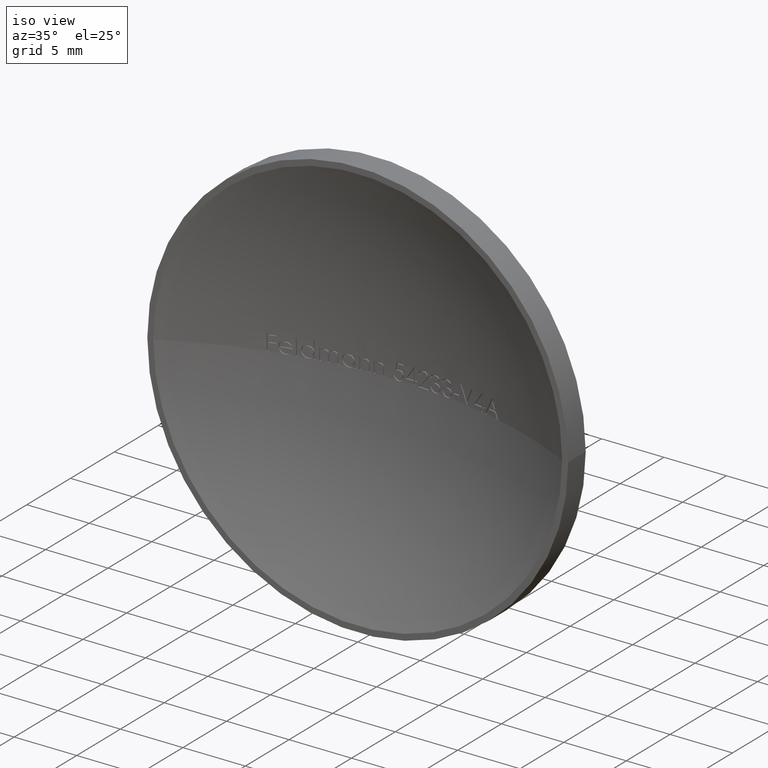
[diagram: clean part render]
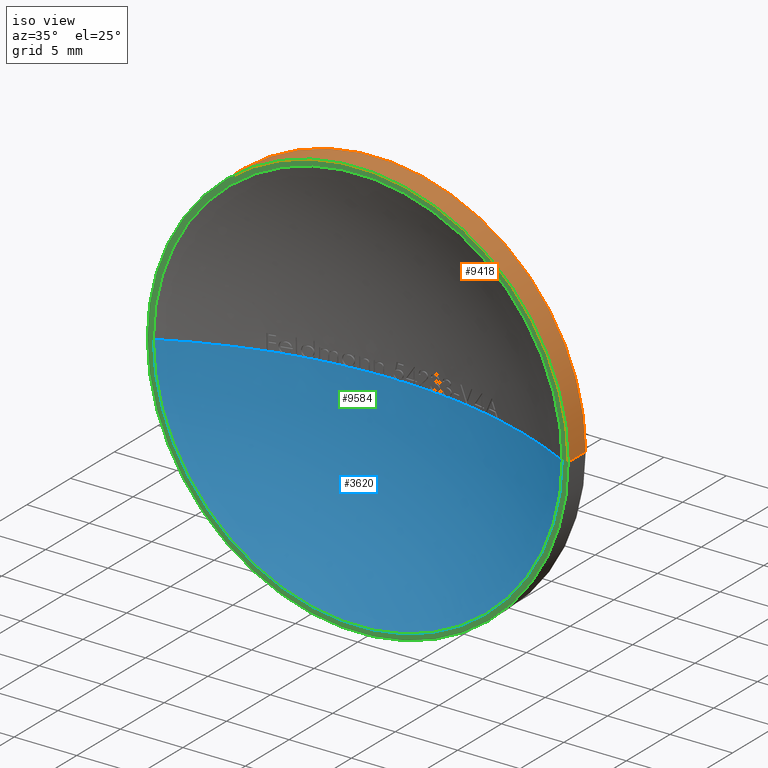
[diagram: same view with three faces highlighted in distinct colors, each labeled with its STEP entity id]
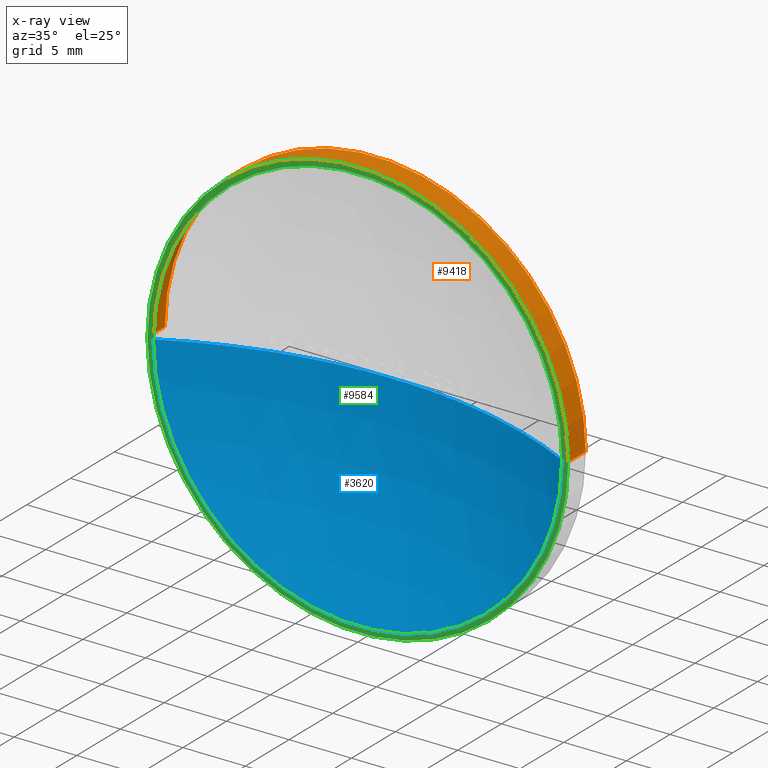
[diagram: x-ray of the same camera — body ghosted, the three highlighted faces saturated]
A machine part, iso view with three faces highlighted in distinct colors.
The next image is the same camera in x-ray (body ghosted, the three faces saturated) — at least one of them is partly hidden behind the body in this view.
Their STEP definitions:

[orange] entity #9418 — the highlighted cylindrical surface (partial cylindrical patch) has radius 16.85 mm, axis along (-0, -1, -0).
#361 = CARTESIAN_POINT ( 'NONE',  ( 16.84999999999999800, -4.663282616847321200E-015, 0.0000000000000000000 ) ) ;
#1017 = CARTESIAN_POINT ( 'NONE',  ( -16.85000000000001200, 2.000000000000191800, 2.063529856563290600E-015 ) ) ;
#1102 = AXIS2_PLACEMENT_3D ( 'NONE', #7205, #8208, #3215 ) ;
#1202 = CIRCLE ( 'NONE', #9539, 16.85000000000000100 ) ;
#1521 = DIRECTION ( 'NONE',  ( -5.836103876533815000E-015, -1.000000000000000000, -0.0000000000000000000 ) ) ;
#1818 = CARTESIAN_POINT ( 'NONE',  ( 16.84999999999999100, 1.999999999999994900, 0.0000000000000000000 ) ) ;
#2272 = CYLINDRICAL_SURFACE ( 'NONE', #8774, 16.85000000000001200 ) ;
#2517 = EDGE_CURVE ( 'NONE', #12225, #3539, #3231, .T. ) ;
#2733 = VERTEX_POINT ( 'NONE', #1017 ) ;
#3215 = DIRECTION ( 'NONE',  ( 1.000000000000000000, -5.836103876533814200E-015, 0.0000000000000000000 ) ) ;
#3231 = CIRCLE ( 'NONE', #1102, 16.85000000000002300 ) ;
#3398 = ORIENTED_EDGE ( 'NONE', *, *, #11072, .T. ) ;
#3408 = DIRECTION ( 'NONE',  ( 1.000000000000000000, -5.842466306331382200E-015, 0.0000000000000000000 ) ) ;
#3539 = VERTEX_POINT ( 'NONE', #5109 ) ;
#3594 = DIRECTION ( 'NONE',  ( 1.000000000000000000, -5.816728569299081700E-015, 0.0000000000000000000 ) ) ;
#3744 = EDGE_CURVE ( 'NONE', #5668, #12225, #10118, .T. ) ;
#4392 = LINE ( 'NONE', #11238, #8650 ) ;
#4409 = DIRECTION ( 'NONE',  ( -5.836103876533815000E-015, -1.000000000000000000, -0.0000000000000000000 ) ) ;
#5109 = CARTESIAN_POINT ( 'NONE',  ( -16.85000000000004400, 1.920134180223424900E-013, 2.063529856563293800E-015 ) ) ;
#5265 = CARTESIAN_POINT ( 'NONE',  ( -1.167220775306714700E-014, 2.000000000000093300, 0.0000000000000000000 ) ) ;
#5378 = ORIENTED_EDGE ( 'NONE', *, *, #2517, .F. ) ;
#5668 = VERTEX_POINT ( 'NONE', #1818 ) ;
#6999 = FACE_OUTER_BOUND ( 'NONE', #9742, .T. ) ;
#7205 = CARTESIAN_POINT ( 'NONE',  ( -2.334441550613477400E-014, 9.367506770274758300E-014, 0.0000000000000000000 ) ) ;
#7536 = VECTOR ( 'NONE', #9918, 1000.000000000000000 ) ;
#7914 = CARTESIAN_POINT ( 'NONE',  ( 16.85000000000001200, 3.999999999999912500, 0.0000000000000000000 ) ) ;
#8208 = DIRECTION ( 'NONE',  ( -5.836103876533815000E-015, -1.000000000000000000, -0.0000000000000000000 ) ) ;
#8385 = DIRECTION ( 'NONE',  ( -5.836103876533815000E-015, -1.000000000000000000, -0.0000000000000000000 ) ) ;
#8650 = VECTOR ( 'NONE', #1521, 1000.000000000000000 ) ;
#8774 = AXIS2_PLACEMENT_3D ( 'NONE', #9327, #8385, #3594 ) ;
#9327 = CARTESIAN_POINT ( 'NONE',  ( 0.0000000000000000000, 4.000000000000010700, 0.0000000000000000000 ) ) ;
#9418 = ADVANCED_FACE ( 'NONE', ( #6999 ), #2272, .T. ) ;
#9463 = EDGE_CURVE ( 'NONE', #2733, #3539, #4392, .T. ) ;
#9539 = AXIS2_PLACEMENT_3D ( 'NONE', #5265, #4409, #3408 ) ;
#9742 = EDGE_LOOP ( 'NONE', ( #3398, #11066, #5378, #12200 ) ) ;
#9918 = DIRECTION ( 'NONE',  ( -5.836103876533815000E-015, -1.000000000000000000, -0.0000000000000000000 ) ) ;
#10118 = LINE ( 'NONE', #7914, #7536 ) ;
#11066 = ORIENTED_EDGE ( 'NONE', *, *, #9463, .T. ) ;
#11072 = EDGE_CURVE ( 'NONE', #5668, #2733, #1202, .T. ) ;
#11238 = CARTESIAN_POINT ( 'NONE',  ( -16.85000000000001200, 4.000000000000108400, 2.063529856563291400E-015 ) ) ;
#12200 = ORIENTED_EDGE ( 'NONE', *, *, #3744, .F. ) ;
#12225 = VERTEX_POINT ( 'NONE', #361 ) ;

[blue] entity #3620 — the highlighted spherical surface has radius 35.4903 mm.
#28 = DIRECTION ( 'NONE',  ( 1.000000000000000000, 0.0000000000000000000, 0.0000000000000000000 ) ) ;
#30 = ORIENTED_EDGE ( 'NONE', *, *, #2640, .T. ) ;
#32 = CARTESIAN_POINT ( 'NONE',  ( 1.167220775306751800E-014, -31.49031249999995200, 0.0000000000000000000 ) ) ;
#109 = ORIENTED_EDGE ( 'NONE', *, *, #9183, .T. ) ;
#116 = DIRECTION ( 'NONE',  ( -1.224646799147353200E-016, 7.147165931888596700E-031, -1.000000000000000000 ) ) ;
#134 = DIRECTION ( 'NONE',  ( 0.0000000000000000000, 0.0000000000000000000, 1.000000000000000000 ) ) ;
#139 = CIRCLE ( 'NONE', #9360, 35.49031249999995900 ) ;
#149 = CARTESIAN_POINT ( 'NONE',  ( 4.379146726176777800, 3.728792456197310500, -1.096664712619620100E-005 ) ) ;
#272 = AXIS2_PLACEMENT_3D ( 'NONE', #5715, #12260, #625 ) ;
#275 = CARTESIAN_POINT ( 'NONE',  ( 1.167220775306751800E-014, -31.49031249999995200, 0.0000000000000000000 ) ) ;
#348 = CIRCLE ( 'NONE', #2376, 35.49031249999995900 ) ;
#372 = DIRECTION ( 'NONE',  ( 1.000000000000000000, 0.0000000000000000000, 0.0000000000000000000 ) ) ;
#376 = DIRECTION ( 'NONE',  ( 1.000000000000000000, 0.0000000000000000000, 0.0000000000000000000 ) ) ;
#395 = ORIENTED_EDGE ( 'NONE', *, *, #7168, .T. ) ;
#398 = DIRECTION ( 'NONE',  ( -1.224646799147353200E-016, 7.147165931888596700E-031, -1.000000000000000000 ) ) ;
#407 = VERTEX_POINT ( 'NONE', #8241 ) ;
#411 = DIRECTION ( 'NONE',  ( 1.000000000000000000, 0.0000000000000000000, 0.0000000000000000000 ) ) ;
#424 = AXIS2_PLACEMENT_3D ( 'NONE', #11244, #10263, #4433 ) ;
#437 = VERTEX_POINT ( 'NONE', #3490 ) ;
#484 = DIRECTION ( 'NONE',  ( -1.000000000000000000, 0.0000000000000000000, 1.224646799147353500E-016 ) ) ;
#498 = VERTEX_POINT ( 'NONE', #6464 ) ;
#513 = AXIS2_PLACEMENT_3D ( 'NONE', #5500, #12339, #7489 ) ;
#517 = EDGE_CURVE ( 'NONE', #12592, #9521, #11001, .T. ) ;
#536 = EDGE_CURVE ( 'NONE', #3498, #2826, #2778, .T. ) ;
#545 = VERTEX_POINT ( 'NONE', #11680 ) ;
#548 = VERTEX_POINT ( 'NONE', #6716 ) ;
#560 = CARTESIAN_POINT ( 'NONE',  ( 4.748798501803322300, 3.680857240312560600, 8.449894842128888500E-007 ) ) ;
#567 = VERTEX_POINT ( 'NONE', #5833 ) ;
#568 = ORIENTED_EDGE ( 'NONE', *, *, #10122, .T. ) ;
#625 = DIRECTION ( 'NONE',  ( 1.000000000000000000, 0.0000000000000000000, 0.0000000000000000000 ) ) ;
#645 = DIRECTION ( 'NONE',  ( 0.0000000000000000000, 0.0000000000000000000, 1.000000000000000000 ) ) ;
#654 = ORIENTED_EDGE ( 'NONE', *, *, #7585, .T. ) ;
#672 = CARTESIAN_POINT ( 'NONE',  ( -7.935163971582754000, 3.101525232382718500, -0.01679690385813359400 ) ) ;
#737 = DIRECTION ( 'NONE',  ( 1.000000000000000000, 0.0000000000000000000, 0.0000000000000000000 ) ) ;
#758 = DIRECTION ( 'NONE',  ( 0.0000000000000000000, -0.0000000000000000000, 1.000000000000000000 ) ) ;
#768 = AXIS2_PLACEMENT_3D ( 'NONE', #5437, #8235, #5393 ) ;
#831 = CARTESIAN_POINT ( 'NONE',  ( 4.379146726176777800, 3.728792456197310500, -1.096664712619620100E-005 ) ) ;
#863 = CIRCLE ( 'NONE', #513, 35.49031249999995900 ) ;
#876 = CARTESIAN_POINT ( 'NONE',  ( 1.696047008547017800, 3.959450628862451400, -1.038529270110141400E-016 ) ) ;
#877 = CARTESIAN_POINT ( 'NONE',  ( -7.800518742710129200, 3.132139341137374400, 1.509771737526409400E-006 ) ) ;
#893 = AXIS2_PLACEMENT_3D ( 'NONE', #12557, #7665, #28 ) ;
#918 = VERTEX_POINT ( 'NONE', #5814 ) ;
#921 = EDGE_CURVE ( 'NONE', #407, #7222, #3696, .T. ) ;
#928 = CARTESIAN_POINT ( 'NONE',  ( 3.476263925993172700, 3.829340944011420300, -0.02983400976588823600 ) ) ;
#929 = DIRECTION ( 'NONE',  ( 1.000000000000000000, 0.0000000000000000000, 0.0000000000000000000 ) ) ;
#985 = ORIENTED_EDGE ( 'NONE', *, *, #10783, .T. ) ;
#1014 = ORIENTED_EDGE ( 'NONE', *, *, #4715, .T. ) ;
#1040 = CARTESIAN_POINT ( 'NONE',  ( -3.258534177724148300, 3.850092499265832700, -2.069073908493412000E-006 ) ) ;
#1044 = CARTESIAN_POINT ( 'NONE',  ( 4.562631460336546300, 3.705475953657665600, -0.03392094017094052200 ) ) ;
#1060 = EDGE_CURVE ( 'NONE', #9867, #8494, #7938, .T. ) ;
#1062 = DIRECTION ( 'NONE',  ( 0.0000000000000000000, -0.0000000000000000000, 1.000000000000000000 ) ) ;
#1121 = ORIENTED_EDGE ( 'NONE', *, *, #9878, .T. ) ;
#1124 = CARTESIAN_POINT ( 'NONE',  ( 1.167220775306751800E-014, -31.49031249999995200, 0.0000000000000000000 ) ) ;
#1157 = ORIENTED_EDGE ( 'NONE', *, *, #3932, .F. ) ;
#1199 = VERTEX_POINT ( 'NONE', #3730 ) ;
#1341 = CIRCLE ( 'NONE', #10225, 35.49031249999995900 ) ;
#1348 = AXIS2_PLACEMENT_3D ( 'NONE', #32, #116, #6785 ) ;
#1349 = CARTESIAN_POINT ( 'NONE',  ( 1.167220775306751800E-014, -31.49031249999995200, 0.0000000000000000000 ) ) ;
#1357 = DIRECTION ( 'NONE',  ( 0.0000000000000000000, 0.0000000000000000000, 1.000000000000000000 ) ) ;
#1359 = CIRCLE ( 'NONE', #5794, 35.49031249999995900 ) ;
#1364 = EDGE_CURVE ( 'NONE', #6060, #567, #4856, .T. ) ;
#1371 = CARTESIAN_POINT ( 'NONE',  ( -6.272029140189477700, 3.441397908695965400, -0.01010645979320831500 ) ) ;
#1392 = B_SPLINE_CURVE_WITH_KNOTS ( 'NONE', 3,
 ( #2160, #9975, #1371, #1449, #1407, #5153, #7214, #3221 ),
 .UNSPECIFIED., .F., .F.,
 ( 4, 2, 2, 4 ),
 ( 0.6904297825672659500, 0.8452148912836327000, 0.9226074456418162900, 1.000000000000000000 ),
 .UNSPECIFIED. ) ;
#1407 = CARTESIAN_POINT ( 'NONE',  ( -6.315183296127559100, 3.433613941332580600, -0.01493816883930907700 ) ) ;
#1446 = ORIENTED_EDGE ( 'NONE', *, *, #3033, .F. ) ;
#1449 = CARTESIAN_POINT ( 'NONE',  ( -6.306798829191019500, 3.435129620968715400, -0.01425243663212617300 ) ) ;
#1459 = VERTEX_POINT ( 'NONE', #12318 ) ;
#1473 = EDGE_CURVE ( 'NONE', #10479, #918, #10840, .T. ) ;
#1490 = CARTESIAN_POINT ( 'NONE',  ( 0.6300673311899101000, 3.994418515346501100, -0.01163513066297225000 ) ) ;
#1559 = CARTESIAN_POINT ( 'NONE',  ( -3.303865669304365300, 3.845889935487476900, -0.01010025188981365100 ) ) ;
#1600 = CARTESIAN_POINT ( 'NONE',  ( -3.347045541091298900, 3.841818228172117600, -0.01493644281810028700 ) ) ;
#1621 = SPHERICAL_SURFACE ( 'NONE', #11726, 35.49031249999995900 ) ;
#1648 = CIRCLE ( 'NONE', #12238, 35.49031249999995900 ) ;
#1724 = AXIS2_PLACEMENT_3D ( 'NONE', #10879, #8014, #9930 ) ;
#1728 = CARTESIAN_POINT ( 'NONE',  ( -7.943065154246786700, 3.099710767490028400, -0.01696047008547008800 ) ) ;
#1770 = VERTEX_POINT ( 'NONE', #5263 ) ;
#1781 = ORIENTED_EDGE ( 'NONE', *, *, #6211, .T. ) ;
#1789 = CARTESIAN_POINT ( 'NONE',  ( -3.445660733028680600, 3.832369502537222000, -0.01563579897491376000 ) ) ;
#1796 = CARTESIAN_POINT ( 'NONE',  ( 6.326255341880353100, 3.431611483322961000, -1.456071059518155700E-015 ) ) ;
#1847 = B_SPLINE_CURVE_WITH_KNOTS ( 'NONE', 3,
 ( #6998, #7959, #3084, #4004, #2156, #4095, #7916, #6030 ),
 .UNSPECIFIED., .F., .F.,
 ( 4, 2, 2, 4 ),
 ( 0.0000000000000000000, 0.06997903322604814800, 0.1399580664520963000, 0.2799161329041929300 ),
 .UNSPECIFIED. ) ;
#1856 = VERTEX_POINT ( 'NONE', #3404 ) ;
#1868 = CARTESIAN_POINT ( 'NONE',  ( 7.784855769230777200, 3.135664771406091700, 1.643544676658220800E-015 ) ) ;
#1877 = DIRECTION ( 'NONE',  ( -1.000000000000000000, 0.0000000000000000000, 1.224646799147353500E-016 ) ) ;
#1879 = EDGE_CURVE ( 'NONE', #5742, #5753, #5181, .T. ) ;
#1880 = CARTESIAN_POINT ( 'NONE',  ( 4.641905809938458000, 3.695116500773728300, -0.02858452783590174900 ) ) ;
#1889 = EDGE_CURVE ( 'NONE', #6564, #11600, #9131, .T. ) ;
#1905 = VERTEX_POINT ( 'NONE', #3893 ) ;
#1918 = DIRECTION ( 'NONE',  ( 0.0000000000000000000, -0.0000000000000000000, 1.000000000000000000 ) ) ;
#1925 = CARTESIAN_POINT ( 'NONE',  ( 4.748798501803322300, 3.680857240312560600, 8.449894842128888500E-007 ) ) ;
#1967 = CARTESIAN_POINT ( 'NONE',  ( 4.719106256666814000, 3.684866464849587200, -0.01179955786276068500 ) ) ;
#1974 = EDGE_CURVE ( 'NONE', #11003, #4401, #348, .T. ) ;
#1979 = DIRECTION ( 'NONE',  ( -1.000000000000000000, 0.0000000000000000000, 1.224646799147353500E-016 ) ) ;
#2107 = DIRECTION ( 'NONE',  ( 1.000000000000000000, 0.0000000000000000000, 0.0000000000000000000 ) ) ;
#2110 = CARTESIAN_POINT ( 'NONE',  ( 3.416248989350395800, 3.835203866140132400, -0.01888556845836841500 ) ) ;
#2156 = CARTESIAN_POINT ( 'NONE',  ( 0.4013287003705925900, 3.997722648281244200, -0.02858799698331126300 ) ) ;
#2160 = CARTESIAN_POINT ( 'NONE',  ( -6.226601178503722500, 3.449517325545350800, 5.513480533243954600E-007 ) ) ;
#2181 = CARTESIAN_POINT ( 'NONE',  ( 1.167220775306751800E-014, -31.49031249999995200, 0.0000000000000000000 ) ) ;
#2195 = VERTEX_POINT ( 'NONE', #9884 ) ;
#2208 = EDGE_CURVE ( 'NONE', #4813, #1199, #1392, .T. ) ;
#2283 = CARTESIAN_POINT ( 'NONE',  ( 0.6590234883587329200, 3.993880633673414900, -9.760576110276470900E-007 ) ) ;
#2296 = VERTEX_POINT ( 'NONE', #4517 ) ;
#2321 = CARTESIAN_POINT ( 'NONE',  ( 0.4714480669070602000, 3.996852326704381000, -0.03392094017094010600 ) ) ;
#2338 = CARTESIAN_POINT ( 'NONE',  ( -6.498529445256612500, 3.399963831401704400, -3.575316885050823300E-006 ) ) ;
#2339 = VERTEX_POINT ( 'NONE', #9283 ) ;
#2374 = CARTESIAN_POINT ( 'NONE',  ( 1.167220775306751800E-014, -31.49031249999995200, 0.0000000000000000000 ) ) ;
#2376 = AXIS2_PLACEMENT_3D ( 'NONE', #1124, #134, #3057 ) ;
#2422 = AXIS2_PLACEMENT_3D ( 'NONE', #11025, #5186, #8970 ) ;
#2464 = CIRCLE ( 'NONE', #768, 16.36833833961167200 ) ;
#2494 = DIRECTION ( 'NONE',  ( 0.0000000000000000000, 0.0000000000000000000, 1.000000000000000000 ) ) ;
#2577 = DIRECTION ( 'NONE',  ( 0.0000000000000000000, 0.0000000000000000000, -1.000000000000000000 ) ) ;
#2596 = CARTESIAN_POINT ( 'NONE',  ( -7.943065154246786700, 3.099710767490028400, -0.01696047008547008800 ) ) ;
#2604 = CARTESIAN_POINT ( 'NONE',  ( -3.396864149305544300, 3.837060847607859600, -0.01696047008546977500 ) ) ;
#2640 = EDGE_CURVE ( 'NONE', #12392, #7346, #6712, .T. ) ;
#2643 = ORIENTED_EDGE ( 'NONE', *, *, #6382, .F. ) ;
#2686 = B_SPLINE_CURVE_WITH_KNOTS ( 'NONE', 3,
 ( #7535, #6692, #2691, #5672, #3670, #2777, #12504, #6563 ),
 .UNSPECIFIED., .F., .F.,
 ( 4, 2, 2, 4 ),
 ( 0.7257772820573561400, 0.8628886410286791300, 0.9314443205143395600, 1.000000000000000000 ),
 .UNSPECIFIED. ) ;
#2691 = CARTESIAN_POINT ( 'NONE',  ( 3.669573540680660400, 3.809786977633839100, -0.02085904406291803900 ) ) ;
#2726 = DIRECTION ( 'NONE',  ( 0.0000000000000000000, 0.0000000000000000000, 1.000000000000000000 ) ) ;
#2732 = DIRECTION ( 'NONE',  ( 1.000000000000000000, 0.0000000000000000000, 0.0000000000000000000 ) ) ;
#2776 = EDGE_CURVE ( 'NONE', #2339, #2195, #4261, .T. ) ;
#2777 = CARTESIAN_POINT ( 'NONE',  ( 3.581919833918896200, 3.818770251813111000, -0.03239492667648843200 ) ) ;
#2778 = B_SPLINE_CURVE_WITH_KNOTS ( 'NONE', 3,
 ( #1925, #1967, #6843, #1880, #5701, #3855, #9610, #1044 ),
 .UNSPECIFIED., .F., .F.,
 ( 4, 2, 2, 4 ),
 ( 0.7254200136342623400, 0.8627100068171311700, 0.9313550034085655800, 1.000000000000000000 ),
 .UNSPECIFIED. ) ;
#2826 = VERTEX_POINT ( 'NONE', #5655 ) ;
#2909 = VERTEX_POINT ( 'NONE', #1040 ) ;
#2925 = ORIENTED_EDGE ( 'NONE', *, *, #3774, .T. ) ;
#2958 = CARTESIAN_POINT ( 'NONE',  ( -2.493189102564097300, 3.912318609092899200, 2.890381257943003800E-015 ) ) ;
#2970 = CARTESIAN_POINT ( 'NONE',  ( -3.530556036791671700, 3.823954346975510600, 4.190788212157769800E-006 ) ) ;
#3033 = EDGE_CURVE ( 'NONE', #2296, #11262, #9605, .T. ) ;
#3057 = DIRECTION ( 'NONE',  ( 1.000000000000000000, 0.0000000000000000000, 0.0000000000000000000 ) ) ;
#3071 = CARTESIAN_POINT ( 'NONE',  ( 3.390305738370283300, 3.837706741222776800, -0.01191829932376762400 ) ) ;
#3084 = CARTESIAN_POINT ( 'NONE',  ( 0.4399878438193060600, 3.997260205191787800, -0.03267365432306261500 ) ) ;
#3085 = CARTESIAN_POINT ( 'NONE',  ( 7.666132478632486700, 3.162143317268037500, -4.694152300898289900E-016 ) ) ;
#3108 = ORIENTED_EDGE ( 'NONE', *, *, #8070, .T. ) ;
#3123 = DIRECTION ( 'NONE',  ( 0.0000000000000000000, 0.0000000000000000000, 1.000000000000000000 ) ) ;
#3162 = AXIS2_PLACEMENT_3D ( 'NONE', #6597, #758, #5710 ) ;
#3197 = DIRECTION ( 'NONE',  ( -1.224646799147353200E-016, 7.147165931888596700E-031, -1.000000000000000000 ) ) ;
#3208 = DIRECTION ( 'NONE',  ( 0.0000000000000000000, -0.0000000000000000000, 1.000000000000000000 ) ) ;
#3221 = CARTESIAN_POINT ( 'NONE',  ( -6.364946414262807800, 3.424576169930973400, -0.01696047008546935200 ) ) ;
#3364 = DIRECTION ( 'NONE',  ( 1.000000000000000000, 0.0000000000000000000, 0.0000000000000000000 ) ) ;
#3387 = CARTESIAN_POINT ( 'NONE',  ( -4.257077991452981700, 3.743755790822495700, 2.606708467976903000E-016 ) ) ;
#3393 = CIRCLE ( 'NONE', #7709, 35.49031249999995900 ) ;
#3400 = CARTESIAN_POINT ( 'NONE',  ( 1.167220775306751800E-014, -31.49031249999995200, 0.0000000000000000000 ) ) ;
#3404 = CARTESIAN_POINT ( 'NONE',  ( 2.086137820512829100, 3.938634850175156000, -5.059610138265687700E-016 ) ) ;
#3411 = DIRECTION ( 'NONE',  ( -1.000000000000000000, 0.0000000000000000000, 1.224646799147353500E-016 ) ) ;
#3412 = CARTESIAN_POINT ( 'NONE',  ( -6.458437771014633500, 3.407431351714768300, -0.01005421597267330800 ) ) ;
#3427 = AXIS2_PLACEMENT_3D ( 'NONE', #2374, #398, #484 ) ;
#3490 = CARTESIAN_POINT ( 'NONE',  ( -3.530556036791671700, 3.823954346975510600, 4.190788212157769800E-006 ) ) ;
#3491 = CARTESIAN_POINT ( 'NONE',  ( 1.167220775306751800E-014, -31.49031249999995200, 0.0000000000000000000 ) ) ;
#3498 = VERTEX_POINT ( 'NONE', #560 ) ;
#3501 = EDGE_CURVE ( 'NONE', #9457, #4137, #4332, .T. ) ;
#3504 = CARTESIAN_POINT ( 'NONE',  ( -3.338694483270943500, 3.842608907284995800, -0.01425549551494594300 ) ) ;
#3516 = AXIS2_PLACEMENT_3D ( 'NONE', #8569, #3574, #5530 ) ;
#3535 = DIRECTION ( 'NONE',  ( -1.224646799147353200E-016, 7.147165931888596700E-031, -1.000000000000000000 ) ) ;
#3540 = B_SPLINE_CURVE_WITH_KNOTS ( 'NONE', 3,
 ( #5227, #9174, #3412, #2338 ),
 .UNSPECIFIED., .F., .F.,
 ( 4, 4 ),
 ( 0.0000000000000000000, 0.1705318954917823300 ),
 .UNSPECIFIED. ) ;
#3546 = CARTESIAN_POINT ( 'NONE',  ( -3.381601859193658300, 3.838528545931246600, -0.01660667597050282200 ) ) ;
#3550 = CARTESIAN_POINT ( 'NONE',  ( -4.138354700854690400, 3.757897407987815400, 2.877773829299415300E-015 ) ) ;
#3568 = CIRCLE ( 'NONE', #3162, 35.49031249999995900 ) ;
#3574 = DIRECTION ( 'NONE',  ( 0.0000000000000000000, 0.0000000000000000000, 1.000000000000000000 ) ) ;
#3593 = AXIS2_PLACEMENT_3D ( 'NONE', #6751, #1918, #4777 ) ;
#3620 = ADVANCED_FACE ( 'NONE', ( #5884 ), #1621, .F. ) ;
#3668 = DIRECTION ( 'NONE',  ( 0.0000000000000000000, -0.0000000000000000000, 1.000000000000000000 ) ) ;
#3670 = CARTESIAN_POINT ( 'NONE',  ( 3.612804873916807500, 3.815625717920934500, -0.02985628300796900500 ) ) ;
#3693 = CARTESIAN_POINT ( 'NONE',  ( -3.396864149305544300, 3.837060847607859600, -0.01696047008546977500 ) ) ;
#3696 = CIRCLE ( 'NONE', #1348, 35.49031249999995900 ) ;
#3730 = CARTESIAN_POINT ( 'NONE',  ( -6.364946414262807800, 3.424576169930973400, -0.01696047008546935200 ) ) ;
#3765 = CIRCLE ( 'NONE', #7817, 35.49031249999995900 ) ;
#3774 = EDGE_CURVE ( 'NONE', #548, #8126, #4934, .T. ) ;
#3795 = CARTESIAN_POINT ( 'NONE',  ( 1.167220775306751800E-014, -31.49031249999995200, 0.0000000000000000000 ) ) ;
#3855 = CARTESIAN_POINT ( 'NONE',  ( 4.599456706894527800, 3.700687399619951200, -0.03239646003208834800 ) ) ;
#3877 = CIRCLE ( 'NONE', #1724, 35.49031249999995900 ) ;
#3893 = CARTESIAN_POINT ( 'NONE',  ( -6.498529445256612500, 3.399963831401704400, -3.575316885050823300E-006 ) ) ;
#3900 = CIRCLE ( 'NONE', #5214, 35.49031249999995900 ) ;
#3903 = ORIENTED_EDGE ( 'NONE', *, *, #5371, .T. ) ;
#3906 = CIRCLE ( 'NONE', #11154, 35.49031249999995900 ) ;
#3932 = EDGE_CURVE ( 'NONE', #9867, #4401, #3877, .T. ) ;
#4004 = CARTESIAN_POINT ( 'NONE',  ( 0.4124046187648084900, 3.997593835170100400, -0.02999588778422144700 ) ) ;
#4095 = CARTESIAN_POINT ( 'NONE',  ( 0.3557255239126150800, 3.998225071046258300, -0.01997791120037679600 ) ) ;
#4124 = CARTESIAN_POINT ( 'NONE',  ( 8.202772352430564200, 3.039049021491504900, -1.369636683265315500E-015 ) ) ;
#4137 = VERTEX_POINT ( 'NONE', #3387 ) ;
#4148 = CARTESIAN_POINT ( 'NONE',  ( -5.851362179487168200, 3.514313508459566500, 2.857886879774008100E-015 ) ) ;
#4197 = CIRCLE ( 'NONE', #11959, 35.49031249999995900 ) ;
#4258 = CARTESIAN_POINT ( 'NONE',  ( 1.167220775306751800E-014, -31.49031249999995200, 0.0000000000000000000 ) ) ;
#4261 = CIRCLE ( 'NONE', #9122, 35.49031249999995900 ) ;
#4325 = AXIS2_PLACEMENT_3D ( 'NONE', #11607, #8831, #929 ) ;
#4332 = CIRCLE ( 'NONE', #424, 35.49031249999995900 ) ;
#4401 = VERTEX_POINT ( 'NONE', #6534 ) ;
#4404 = CARTESIAN_POINT ( 'NONE',  ( 1.167220775306751800E-014, -31.49031249999995200, 0.0000000000000000000 ) ) ;
#4433 = DIRECTION ( 'NONE',  ( 1.000000000000000000, 0.0000000000000000000, 0.0000000000000000000 ) ) ;
#4490 = CARTESIAN_POINT ( 'NONE',  ( 9.328258547008548600, 2.752144681513982100, -3.035766082959412400E-015 ) ) ;
#4504 = CARTESIAN_POINT ( 'NONE',  ( -7.846976162595675300, 3.121647114137828400, -0.01036372235287825100 ) ) ;
#4517 = CARTESIAN_POINT ( 'NONE',  ( 2.166242032335205700E-013, 4.000000000000010700, 0.0000000000000000000 ) ) ;
#4531 = AXIS2_PLACEMENT_3D ( 'NONE', #12487, #12526, #1877 ) ;
#4532 = CARTESIAN_POINT ( 'NONE',  ( 1.167220775306751800E-014, -31.49031249999995200, 0.0000000000000000000 ) ) ;
#4535 = EDGE_CURVE ( 'NONE', #7719, #11301, #9669, .T. ) ;
#4610 = ORIENTED_EDGE ( 'NONE', *, *, #1889, .T. ) ;
#4635 = EDGE_CURVE ( 'NONE', #918, #8847, #10258, .T. ) ;
#4670 = CARTESIAN_POINT ( 'NONE',  ( -3.490244593994775700, 3.827984675301374200, -0.01012191151963253400 ) ) ;
#4673 = CARTESIAN_POINT ( 'NONE',  ( 0.3041935031454859300, 3.998696186075451300, -5.381238264765152100E-006 ) ) ;
#4715 = EDGE_CURVE ( 'NONE', #1459, #10350, #863, .T. ) ;
#4768 = CARTESIAN_POINT ( 'NONE',  ( -9.243456196581185200, 2.775133635860269600, 1.131996904420217600E-015 ) ) ;
#4777 = DIRECTION ( 'NONE',  ( 1.000000000000000000, 0.0000000000000000000, 0.0000000000000000000 ) ) ;
#4813 = VERTEX_POINT ( 'NONE', #9362 ) ;
#4816 = CIRCLE ( 'NONE', #2422, 35.49031249999995900 ) ;
#4825 = DIRECTION ( 'NONE',  ( 0.0000000000000000000, 0.0000000000000000000, 1.000000000000000000 ) ) ;
#4827 = CARTESIAN_POINT ( 'NONE',  ( -8.083029141463686800, 3.067275558166520100, -5.062598521466236000E-007 ) ) ;
#4828 = ORIENTED_EDGE ( 'NONE', *, *, #7499, .T. ) ;
#4856 = B_SPLINE_CURVE_WITH_KNOTS ( 'NONE', 3,
 ( #2283, #1490, #5335, #10101, #10065, #2321 ),
 .UNSPECIFIED., .F., .F.,
 ( 4, 2, 4 ),
 ( 0.7372738548018775700, 0.8686369274009387900, 1.000000000000000000 ),
 .UNSPECIFIED. ) ;
#4868 = ORIENTED_EDGE ( 'NONE', *, *, #4635, .T. ) ;
#4879 = CARTESIAN_POINT ( 'NONE',  ( 1.167220775306751800E-014, -31.49031249999995200, 0.0000000000000000000 ) ) ;
#4930 = CARTESIAN_POINT ( 'NONE',  ( -4.918536324786314800, 3.657522166866954200, 3.011734883319906800E-016 ) ) ;
#4934 = CIRCLE ( 'NONE', #12145, 35.49031249999995900 ) ;
#5003 = DIRECTION ( 'NONE',  ( -1.000000000000000000, 0.0000000000000000000, 1.224646799147353500E-016 ) ) ;
#5103 = EDGE_CURVE ( 'NONE', #1770, #10678, #2464, .T. ) ;
#5130 = ORIENTED_EDGE ( 'NONE', *, *, #12221, .T. ) ;
#5138 = AXIS2_PLACEMENT_3D ( 'NONE', #9657, #4825, #8741 ) ;
#5153 = CARTESIAN_POINT ( 'NONE',  ( -6.336704260778200000, 3.429714993880619700, -0.01613165344096282800 ) ) ;
#5172 = DIRECTION ( 'NONE',  ( 1.000000000000000000, 0.0000000000000000000, 0.0000000000000000000 ) ) ;
#5179 = ORIENTED_EDGE ( 'NONE', *, *, #6595, .F. ) ;
#5181 = CIRCLE ( 'NONE', #9562, 35.49031249999995900 ) ;
#5186 = DIRECTION ( 'NONE',  ( 0.0000000000000000000, -0.0000000000000000000, 1.000000000000000000 ) ) ;
#5189 = CARTESIAN_POINT ( 'NONE',  ( -7.995381291624432200, 3.087697772551423600, -0.01573919670741226500 ) ) ;
#5214 = AXIS2_PLACEMENT_3D ( 'NONE', #11532, #3535, #6472 ) ;
#5227 = CARTESIAN_POINT ( 'NONE',  ( -6.364946414262807800, 3.424576169930973400, -0.01696047008546935200 ) ) ;
#5234 = ORIENTED_EDGE ( 'NONE', *, *, #2208, .T. ) ;
#5263 = CARTESIAN_POINT ( 'NONE',  ( -16.36833833961147600, 1.926130716621757600E-013, 0.0000000000000000000 ) ) ;
#5319 = ORIENTED_EDGE ( 'NONE', *, *, #10039, .T. ) ;
#5335 = CARTESIAN_POINT ( 'NONE',  ( 0.5975297842270479400, 3.994977080770784300, -0.02063682927555392900 ) ) ;
#5336 = CARTESIAN_POINT ( 'NONE',  ( -7.225160256410245700, 3.256764220450118600, 4.424134690669870300E-016 ) ) ;
#5371 = EDGE_CURVE ( 'NONE', #10147, #7426, #6424, .T. ) ;
#5393 = DIRECTION ( 'NONE',  ( 1.000000000000000000, -5.836103876533815000E-015, 0.0000000000000000000 ) ) ;
#5399 = CARTESIAN_POINT ( 'NONE',  ( -1.492521367521358200, 3.968602617571620300, 0.0000000000000000000 ) ) ;
#5437 = CARTESIAN_POINT ( 'NONE',  ( -2.334441550613476100E-014, 9.540979117872439000E-014, 0.0000000000000000000 ) ) ;
#5443 = DIRECTION ( 'NONE',  ( 1.000000000000000000, 0.0000000000000000000, 0.0000000000000000000 ) ) ;
#5446 = CIRCLE ( 'NONE', #11236, 35.49031249999995900 ) ;
#5462 = VERTEX_POINT ( 'NONE', #8605 ) ;
#5475 = AXIS2_PLACEMENT_3D ( 'NONE', #8956, #3197, #5003 ) ;
#5499 = CARTESIAN_POINT ( 'NONE',  ( -7.916409097638080500, 3.105821968576900200, -0.01628230623874191200 ) ) ;
#5500 = CARTESIAN_POINT ( 'NONE',  ( 1.167220775306751800E-014, -31.49031249999995200, 0.0000000000000000000 ) ) ;
#5530 = DIRECTION ( 'NONE',  ( 1.000000000000000000, 0.0000000000000000000, 0.0000000000000000000 ) ) ;
#5552 = ORIENTED_EDGE ( 'NONE', *, *, #12313, .T. ) ;
#5580 = CARTESIAN_POINT ( 'NONE',  ( 1.167220775306751800E-014, -31.49031249999995200, 0.0000000000000000000 ) ) ;
#5607 = ORIENTED_EDGE ( 'NONE', *, *, #6260, .T. ) ;
#5655 = CARTESIAN_POINT ( 'NONE',  ( 4.562631460336546300, 3.705475953657665600, -0.03392094017094052200 ) ) ;
#5672 = CARTESIAN_POINT ( 'NONE',  ( 3.624308676257012300, 3.814447621088369500, -0.02859147803428237600 ) ) ;
#5701 = CARTESIAN_POINT ( 'NONE',  ( 4.630337534074678600, 3.696639747185279700, -0.02985530293058846800 ) ) ;
#5710 = DIRECTION ( 'NONE',  ( 1.000000000000000000, 0.0000000000000000000, 0.0000000000000000000 ) ) ;
#5714 = CARTESIAN_POINT ( 'NONE',  ( 4.562631460336546300, 3.705475953657665600, -0.03392094017094052200 ) ) ;
#5715 = CARTESIAN_POINT ( 'NONE',  ( 1.167220775306751800E-014, -31.49031249999995200, 0.0000000000000000000 ) ) ;
#5741 = EDGE_CURVE ( 'NONE', #1905, #1459, #1648, .T. ) ;
#5742 = VERTEX_POINT ( 'NONE', #4930 ) ;
#5753 = VERTEX_POINT ( 'NONE', #5901 ) ;
#5794 = AXIS2_PLACEMENT_3D ( 'NONE', #11553, #9608, #11438 ) ;
#5797 = CARTESIAN_POINT ( 'NONE',  ( 4.494012397388750900, 3.714320546987593300, -0.02986236047802356300 ) ) ;
#5814 = CARTESIAN_POINT ( 'NONE',  ( -2.611912393162386900, 3.903757554150337300, 0.0000000000000000000 ) ) ;
#5833 = CARTESIAN_POINT ( 'NONE',  ( 0.4714480669070602000, 3.996852326704381000, -0.03392094017094010600 ) ) ;
#5861 = EDGE_CURVE ( 'NONE', #548, #8494, #3765, .T. ) ;
#5869 = EDGE_LOOP ( 'NONE', ( #1446, #5130, #8457, #395, #1781, #30, #9370, #12044, #10579, #4868, #8114, #6726, #568, #10377, #9162, #7724, #11275, #654, #9479, #8712, #5607, #7139, #5552, #5234, #8020, #6513, #1014, #8540, #4828, #5319, #3903, #8803, #109, #8074, #6434, #4610, #2643, #10899, #1157, #8158, #6106, #2925, #8677, #6376, #985, #12116, #6764, #11994, #12379, #3108, #7537, #10616, #5179, #6627, #1121 ) ) ;
#5884 = FACE_OUTER_BOUND ( 'NONE', #5869, .T. ) ;
#5901 = CARTESIAN_POINT ( 'NONE',  ( -5.461271367521357300, 3.577290731443522700, 2.863028536743774000E-015 ) ) ;
#5974 = VERTEX_POINT ( 'NONE', #11099 ) ;
#6023 = CARTESIAN_POINT ( 'NONE',  ( 1.167220775306751800E-014, -31.49031249999995200, 0.0000000000000000000 ) ) ;
#6029 = EDGE_CURVE ( 'NONE', #1199, #1905, #3540, .T. ) ;
#6030 = CARTESIAN_POINT ( 'NONE',  ( 0.3041935031454859300, 3.998696186075451300, -5.381238264765152100E-006 ) ) ;
#6033 = CIRCLE ( 'NONE', #7079, 35.49031249999995900 ) ;
#6038 = EDGE_CURVE ( 'NONE', #7426, #9849, #11830, .T. ) ;
#6060 = VERTEX_POINT ( 'NONE', #9050 ) ;
#6097 = VERTEX_POINT ( 'NONE', #6186 ) ;
#6106 = ORIENTED_EDGE ( 'NONE', *, *, #5861, .F. ) ;
#6186 = CARTESIAN_POINT ( 'NONE',  ( -5.579994658119646000, 3.558595342656282900, 0.0000000000000000000 ) ) ;
#6211 = EDGE_CURVE ( 'NONE', #545, #12392, #9234, .T. ) ;
#6212 = EDGE_CURVE ( 'NONE', #6564, #10678, #3900, .T. ) ;
#6260 = EDGE_CURVE ( 'NONE', #6097, #12592, #11373, .T. ) ;
#6343 = CARTESIAN_POINT ( 'NONE',  ( -7.913073808218793900, 3.106585125126680500, -0.01618223727738083900 ) ) ;
#6363 = CARTESIAN_POINT ( 'NONE',  ( 1.167220775306751800E-014, -31.49031249999995200, 0.0000000000000000000 ) ) ;
#6376 = ORIENTED_EDGE ( 'NONE', *, *, #536, .T. ) ;
#6382 = EDGE_CURVE ( 'NONE', #11003, #11600, #7410, .T. ) ;
#6424 = CIRCLE ( 'NONE', #3593, 35.49031249999995900 ) ;
#6426 = CARTESIAN_POINT ( 'NONE',  ( -7.800518742710129200, 3.132139341137374400, 1.509771737526409400E-006 ) ) ;
#6434 = ORIENTED_EDGE ( 'NONE', *, *, #6212, .F. ) ;
#6464 = CARTESIAN_POINT ( 'NONE',  ( -4.799813034188023400, 3.673931785701571400, 2.870918613927997200E-015 ) ) ;
#6472 = DIRECTION ( 'NONE',  ( -1.000000000000000000, 0.0000000000000000000, 1.224646799147353500E-016 ) ) ;
#6473 = CARTESIAN_POINT ( 'NONE',  ( -7.928252360286768100, 3.103109653404581400, -0.01662860374506976200 ) ) ;
#6487 = CIRCLE ( 'NONE', #9681, 35.49031249999995900 ) ;
#6496 = DIRECTION ( 'NONE',  ( -1.000000000000000000, 5.865454611514538600E-015, 0.0000000000000000000 ) ) ;
#6510 = DIRECTION ( 'NONE',  ( 1.000000000000000000, 0.0000000000000000000, 0.0000000000000000000 ) ) ;
#6513 = ORIENTED_EDGE ( 'NONE', *, *, #5741, .T. ) ;
#6534 = CARTESIAN_POINT ( 'NONE',  ( 8.073183760683770400, 3.069577333648036500, 4.852990141966833100E-016 ) ) ;
#6563 = CARTESIAN_POINT ( 'NONE',  ( 3.545003255208340600, 3.822490881182258000, -0.03392094017094032100 ) ) ;
#6564 = VERTEX_POINT ( 'NONE', #4490 ) ;
#6595 = EDGE_CURVE ( 'NONE', #6060, #11301, #12277, .T. ) ;
#6597 = CARTESIAN_POINT ( 'NONE',  ( 1.167220775306751800E-014, -31.49031249999995200, 0.0000000000000000000 ) ) ;
#6627 = ORIENTED_EDGE ( 'NONE', *, *, #1364, .T. ) ;
#6692 = CARTESIAN_POINT ( 'NONE',  ( 3.701509416278456800, 3.806457878028890900, -0.01178890008847061900 ) ) ;
#6712 = CIRCLE ( 'NONE', #9958, 35.49031249999995900 ) ;
#6716 = CARTESIAN_POINT ( 'NONE',  ( 6.343215811965822400, 3.428534767779101200, 2.168404344971008900E-015 ) ) ;
#6725 = CARTESIAN_POINT ( 'NONE',  ( 1.167220775306751800E-014, -31.49031249999995200, 0.0000000000000000000 ) ) ;
#6726 = ORIENTED_EDGE ( 'NONE', *, *, #7349, .T. ) ;
#6728 = CARTESIAN_POINT ( 'NONE',  ( 3.509173903746262800, 3.826088545553234500, -0.03308231369483927800 ) ) ;
#6751 = CARTESIAN_POINT ( 'NONE',  ( 1.167220775306751800E-014, -31.49031249999995200, 0.0000000000000000000 ) ) ;
#6764 = ORIENTED_EDGE ( 'NONE', *, *, #11921, .T. ) ;
#6785 = DIRECTION ( 'NONE',  ( -1.000000000000000000, 0.0000000000000000000, 1.224646799147353500E-016 ) ) ;
#6805 = DIRECTION ( 'NONE',  ( 1.000000000000000000, 0.0000000000000000000, 0.0000000000000000000 ) ) ;
#6843 = CARTESIAN_POINT ( 'NONE',  ( 4.687263876512190600, 3.689118437381611500, -0.02084704329089242000 ) ) ;
#6851 = AXIS2_PLACEMENT_3D ( 'NONE', #4879, #8832, #1979 ) ;
#6998 = CARTESIAN_POINT ( 'NONE',  ( 0.4714480669070602000, 3.996852326704381000, -0.03392094017094010600 ) ) ;
#7041 = EDGE_CURVE ( 'NONE', #437, #9457, #12432, .T. ) ;
#7068 = DIRECTION ( 'NONE',  ( 0.0000000000000000000, 0.0000000000000000000, 1.000000000000000000 ) ) ;
#7079 = AXIS2_PLACEMENT_3D ( 'NONE', #5580, #12381, #6510 ) ;
#7136 = B_SPLINE_CURVE_WITH_KNOTS ( 'NONE', 3,
 ( #11028, #5189, #10131, #7492 ),
 .UNSPECIFIED., .F., .F.,
 ( 4, 4 ),
 ( 0.0000000000000000000, 0.1826142883817180600 ),
 .UNSPECIFIED. ) ;
#7139 = ORIENTED_EDGE ( 'NONE', *, *, #517, .T. ) ;
#7155 = CARTESIAN_POINT ( 'NONE',  ( 1.167220775306751800E-014, -31.49031249999995200, 0.0000000000000000000 ) ) ;
#7156 = CARTESIAN_POINT ( 'NONE',  ( 1.167220775306751800E-014, -31.49031249999995200, 0.0000000000000000000 ) ) ;
#7168 = EDGE_CURVE ( 'NONE', #2195, #545, #8007, .T. ) ;
#7214 = CARTESIAN_POINT ( 'NONE',  ( -6.349705569281360000, 3.427354731094814300, -0.01660717308862123500 ) ) ;
#7222 = VERTEX_POINT ( 'NONE', #9711 ) ;
#7277 = CARTESIAN_POINT ( 'NONE',  ( 1.814770299145309000, 3.953571177004088000, 2.059189302817920000E-015 ) ) ;
#7279 = DIRECTION ( 'NONE',  ( -1.224646799147353200E-016, 7.147165931888596700E-031, -1.000000000000000000 ) ) ;
#7346 = VERTEX_POINT ( 'NONE', #11789 ) ;
#7349 = EDGE_CURVE ( 'NONE', #5974, #2909, #4197, .T. ) ;
#7410 = CIRCLE ( 'NONE', #5475, 35.49031249999995900 ) ;
#7415 = CARTESIAN_POINT ( 'NONE',  ( 1.167220775306751800E-014, -31.49031249999995200, 0.0000000000000000000 ) ) ;
#7425 = AXIS2_PLACEMENT_3D ( 'NONE', #11365, #11270, #9273 ) ;
#7426 = VERTEX_POINT ( 'NONE', #9177 ) ;
#7489 = DIRECTION ( 'NONE',  ( 1.000000000000000000, 0.0000000000000000000, 0.0000000000000000000 ) ) ;
#7492 = CARTESIAN_POINT ( 'NONE',  ( -8.083029141463686800, 3.067275558166520100, -5.062598521466236000E-007 ) ) ;
#7499 = EDGE_CURVE ( 'NONE', #8075, #12066, #12351, .T. ) ;
#7528 = DIRECTION ( 'NONE',  ( -1.224646799147353200E-016, 7.147165931888596700E-031, -1.000000000000000000 ) ) ;
#7535 = CARTESIAN_POINT ( 'NONE',  ( 3.731172180617510200, 3.803321804880581200, 6.739817542054104800E-007 ) ) ;
#7537 = ORIENTED_EDGE ( 'NONE', *, *, #7819, .F. ) ;
#7552 = AXIS2_PLACEMENT_3D ( 'NONE', #8839, #1062, #9791 ) ;
#7564 = CARTESIAN_POINT ( 'NONE',  ( 1.167220775306751800E-014, -31.49031249999995200, 0.0000000000000000000 ) ) ;
#7585 = EDGE_CURVE ( 'NONE', #498, #5742, #1341, .T. ) ;
#7608 = DIRECTION ( 'NONE',  ( 1.000000000000000000, 0.0000000000000000000, 0.0000000000000000000 ) ) ;
#7655 = CARTESIAN_POINT ( 'NONE',  ( 1.167220775306751800E-014, -31.49031249999995200, 0.0000000000000000000 ) ) ;
#7658 = AXIS2_PLACEMENT_3D ( 'NONE', #7155, #1357, #411 ) ;
#7665 = DIRECTION ( 'NONE',  ( 0.0000000000000000000, -0.0000000000000000000, 1.000000000000000000 ) ) ;
#7709 = AXIS2_PLACEMENT_3D ( 'NONE', #7564, #2726, #7608 ) ;
#7719 = VERTEX_POINT ( 'NONE', #7277 ) ;
#7724 = ORIENTED_EDGE ( 'NONE', *, *, #3501, .T. ) ;
#7728 = DIRECTION ( 'NONE',  ( 1.000000000000000000, 0.0000000000000000000, 0.0000000000000000000 ) ) ;
#7817 = AXIS2_PLACEMENT_3D ( 'NONE', #2181, #7864, #10902 ) ;
#7819 = EDGE_CURVE ( 'NONE', #7719, #1856, #6487, .T. ) ;
#7822 = B_SPLINE_CURVE_WITH_KNOTS ( 'NONE', 3,
 ( #12546, #6728, #928, #2110, #3071, #11053 ),
 .UNSPECIFIED., .F., .F.,
 ( 4, 2, 4 ),
 ( 0.0000000000000000000, 0.1449877493087614600, 0.2899754986175229200 ),
 .UNSPECIFIED. ) ;
#7842 = EDGE_CURVE ( 'NONE', #7346, #8245, #6033, .T. ) ;
#7864 = DIRECTION ( 'NONE',  ( -1.224646799147353200E-016, 7.147165931888596700E-031, -1.000000000000000000 ) ) ;
#7866 = CIRCLE ( 'NONE', #6851, 35.49031249999995900 ) ;
#7916 = CARTESIAN_POINT ( 'NONE',  ( 0.3330913782711861200, 3.998448629240555400, -0.01318780909469216600 ) ) ;
#7938 = CIRCLE ( 'NONE', #7425, 35.49031249999995900 ) ;
#7959 = CARTESIAN_POINT ( 'NONE',  ( 0.4550683811930812400, 3.997070242350200700, -0.03359555782393632700 ) ) ;
#8007 = CIRCLE ( 'NONE', #893, 35.49031249999995900 ) ;
#8014 = DIRECTION ( 'NONE',  ( -1.224646799147353200E-016, 7.147165931888596700E-031, -1.000000000000000000 ) ) ;
#8020 = ORIENTED_EDGE ( 'NONE', *, *, #6029, .T. ) ;
#8026 = VERTEX_POINT ( 'NONE', #831 ) ;
#8070 = EDGE_CURVE ( 'NONE', #407, #1856, #3393, .T. ) ;
#8074 = ORIENTED_EDGE ( 'NONE', *, *, #5103, .T. ) ;
#8075 = VERTEX_POINT ( 'NONE', #877 ) ;
#8112 = DIRECTION ( 'NONE',  ( 0.0000000000000000000, -0.0000000000000000000, 1.000000000000000000 ) ) ;
#8114 = ORIENTED_EDGE ( 'NONE', *, *, #12369, .T. ) ;
#8126 = VERTEX_POINT ( 'NONE', #1796 ) ;
#8140 = AXIS2_PLACEMENT_3D ( 'NONE', #4404, #2494, #5443 ) ;
#8158 = ORIENTED_EDGE ( 'NONE', *, *, #1060, .T. ) ;
#8192 = DIRECTION ( 'NONE',  ( 0.0000000000000000000, -0.0000000000000000000, 1.000000000000000000 ) ) ;
#8235 = DIRECTION ( 'NONE',  ( -5.836103876533815000E-015, -1.000000000000000000, -0.0000000000000000000 ) ) ;
#8241 = CARTESIAN_POINT ( 'NONE',  ( 2.985042735042745300, 3.874243219217305500, 2.887272664320509500E-015 ) ) ;
#8243 = CARTESIAN_POINT ( 'NONE',  ( 9.199199969951930500, 2.787041558627301200, -2.605921262850178600E-015 ) ) ;
#8245 = VERTEX_POINT ( 'NONE', #12197 ) ;
#8372 = CARTESIAN_POINT ( 'NONE',  ( -7.822648951436158300, 3.127153602408616600, -0.005772260524306754700 ) ) ;
#8410 = DIRECTION ( 'NONE',  ( -1.000000000000000000, 0.0000000000000000000, 1.224646799147353500E-016 ) ) ;
#8423 = CARTESIAN_POINT ( 'NONE',  ( -3.258534177724148300, 3.850092499265832700, -2.069073908493412000E-006 ) ) ;
#8440 = AXIS2_PLACEMENT_3D ( 'NONE', #7415, #11284, #8474 ) ;
#8457 = ORIENTED_EDGE ( 'NONE', *, *, #2776, .T. ) ;
#8474 = DIRECTION ( 'NONE',  ( 1.000000000000000000, 0.0000000000000000000, 0.0000000000000000000 ) ) ;
#8494 = VERTEX_POINT ( 'NONE', #3085 ) ;
#8501 = CARTESIAN_POINT ( 'NONE',  ( 16.36833833961164700, -5.876582875017628900E-017, -2.004543315496607100E-015 ) ) ;
#8540 = ORIENTED_EDGE ( 'NONE', *, *, #12420, .T. ) ;
#8569 = CARTESIAN_POINT ( 'NONE',  ( 1.167220775306751800E-014, -31.49031249999995200, 0.0000000000000000000 ) ) ;
#8605 = CARTESIAN_POINT ( 'NONE',  ( -3.396864149305544300, 3.837060847607859600, -0.01696047008546977500 ) ) ;
#8636 = VERTEX_POINT ( 'NONE', #11234 ) ;
#8654 = DIRECTION ( 'NONE',  ( 0.0000000000000000000, -0.0000000000000000000, 1.000000000000000000 ) ) ;
#8677 = ORIENTED_EDGE ( 'NONE', *, *, #12102, .F. ) ;
#8712 = ORIENTED_EDGE ( 'NONE', *, *, #11565, .T. ) ;
#8741 = DIRECTION ( 'NONE',  ( 1.000000000000000000, 0.0000000000000000000, 0.0000000000000000000 ) ) ;
#8762 = DIRECTION ( 'NONE',  ( 1.000000000000000000, 0.0000000000000000000, 0.0000000000000000000 ) ) ;
#8803 = ORIENTED_EDGE ( 'NONE', *, *, #6038, .T. ) ;
#8831 = DIRECTION ( 'NONE',  ( 0.0000000000000000000, -0.0000000000000000000, 1.000000000000000000 ) ) ;
#8832 = DIRECTION ( 'NONE',  ( -1.224646799147353200E-016, 7.147165931888596700E-031, -1.000000000000000000 ) ) ;
#8839 = CARTESIAN_POINT ( 'NONE',  ( 1.167220775306751800E-014, -31.49031249999995200, 0.0000000000000000000 ) ) ;
#8847 = VERTEX_POINT ( 'NONE', #11832 ) ;
#8864 = EDGE_CURVE ( 'NONE', #4137, #498, #12405, .T. ) ;
#8956 = CARTESIAN_POINT ( 'NONE',  ( 1.167220775306751800E-014, -31.49031249999995200, 0.0000000000000000000 ) ) ;
#8970 = DIRECTION ( 'NONE',  ( 1.000000000000000000, 0.0000000000000000000, 0.0000000000000000000 ) ) ;
#9011 = DIRECTION ( 'NONE',  ( 0.0000000000000000000, 0.0000000000000000000, 1.000000000000000000 ) ) ;
#9029 = EDGE_CURVE ( 'NONE', #8636, #8026, #9515, .T. ) ;
#9050 = CARTESIAN_POINT ( 'NONE',  ( 0.6590234883587329200, 3.993880633673414900, -9.760576110276470900E-007 ) ) ;
#9122 = AXIS2_PLACEMENT_3D ( 'NONE', #275, #7068, #2107 ) ;
#9131 = CIRCLE ( 'NONE', #5138, 35.49031249999995900 ) ;
#9162 = ORIENTED_EDGE ( 'NONE', *, *, #7041, .T. ) ;
#9174 = CARTESIAN_POINT ( 'NONE',  ( -6.413902021239386500, 3.415652261343819600, -0.01563148200241671100 ) ) ;
#9177 = CARTESIAN_POINT ( 'NONE',  ( -9.124732905982892100, 2.806940024686718900, 3.217558520833972700E-015 ) ) ;
#9183 = EDGE_CURVE ( 'NONE', #9849, #1770, #3568, .T. ) ;
#9234 = CIRCLE ( 'NONE', #272, 35.49031249999995900 ) ;
#9264 = CARTESIAN_POINT ( 'NONE',  ( 1.167220775306751800E-014, -31.49031249999995200, 0.0000000000000000000 ) ) ;
#9273 = DIRECTION ( 'NONE',  ( 1.000000000000000000, 0.0000000000000000000, 0.0000000000000000000 ) ) ;
#9283 = CARTESIAN_POINT ( 'NONE',  ( -0.6444978632478530800, 3.994147533258582100, 2.897062026613482700E-015 ) ) ;
#9360 = AXIS2_PLACEMENT_3D ( 'NONE', #3491, #12166, #10278 ) ;
#9362 = CARTESIAN_POINT ( 'NONE',  ( -6.226601178503722500, 3.449517325545350800, 5.513480533243954600E-007 ) ) ;
#9370 = ORIENTED_EDGE ( 'NONE', *, *, #7842, .T. ) ;
#9457 = VERTEX_POINT ( 'NONE', #3550 ) ;
#9479 = ORIENTED_EDGE ( 'NONE', *, *, #1879, .T. ) ;
#9515 = CIRCLE ( 'NONE', #11872, 35.49031249999995900 ) ;
#9521 = VERTEX_POINT ( 'NONE', #10465 ) ;
#9562 = AXIS2_PLACEMENT_3D ( 'NONE', #11681, #8654, #6805 ) ;
#9605 = CIRCLE ( 'NONE', #3427, 35.49031249999995900 ) ;
#9608 = DIRECTION ( 'NONE',  ( 0.0000000000000000000, -0.0000000000000000000, 1.000000000000000000 ) ) ;
#9610 = CARTESIAN_POINT ( 'NONE',  ( 4.582034993691869400, 3.702961136017291800, -0.03332596672880497300 ) ) ;
#9620 = DIRECTION ( 'NONE',  ( 0.0000000000000000000, 0.0000000000000000000, 1.000000000000000000 ) ) ;
#9657 = CARTESIAN_POINT ( 'NONE',  ( 1.167220775306751800E-014, -31.49031249999995200, 0.0000000000000000000 ) ) ;
#9669 = CIRCLE ( 'NONE', #9856, 35.49031249999995900 ) ;
#9681 = AXIS2_PLACEMENT_3D ( 'NONE', #9264, #7528, #8410 ) ;
#9711 = CARTESIAN_POINT ( 'NONE',  ( 3.361531899462559400, 3.840444398903670700, -1.127221331879436700E-005 ) ) ;
#9791 = DIRECTION ( 'NONE',  ( 1.000000000000000000, 0.0000000000000000000, 0.0000000000000000000 ) ) ;
#9849 = VERTEX_POINT ( 'NONE', #4768 ) ;
#9856 = AXIS2_PLACEMENT_3D ( 'NONE', #6023, #3123, #9963 ) ;
#9867 = VERTEX_POINT ( 'NONE', #1868 ) ;
#9878 = EDGE_CURVE ( 'NONE', #567, #11262, #1847, .T. ) ;
#9884 = CARTESIAN_POINT ( 'NONE',  ( -0.7632211538461435300, 3.991792494179510900, 4.673381715497482100E-017 ) ) ;
#9930 = DIRECTION ( 'NONE',  ( -1.000000000000000000, 0.0000000000000000000, 1.224646799147353500E-016 ) ) ;
#9941 = VERTEX_POINT ( 'NONE', #10089 ) ;
#9958 = AXIS2_PLACEMENT_3D ( 'NONE', #7655, #3668, #2732 ) ;
#9963 = DIRECTION ( 'NONE',  ( 1.000000000000000000, 0.0000000000000000000, 0.0000000000000000000 ) ) ;
#9975 = CARTESIAN_POINT ( 'NONE',  ( -6.249062154699619700, 3.445514727317698300, -0.005795539829605498600 ) ) ;
#10039 = EDGE_CURVE ( 'NONE', #12066, #10147, #7136, .T. ) ;
#10065 = CARTESIAN_POINT ( 'NONE',  ( 0.5043575175002974500, 3.996415408833171100, -0.03362258895371907800 ) ) ;
#10089 = CARTESIAN_POINT ( 'NONE',  ( 3.545003255208340600, 3.822490881182258000, -0.03392094017094032100 ) ) ;
#10101 = CARTESIAN_POINT ( 'NONE',  ( 0.5363764638212981100, 3.995946416302249100, -0.03118921509520530100 ) ) ;
#10122 = EDGE_CURVE ( 'NONE', #2909, #5462, #11258, .T. ) ;
#10131 = CARTESIAN_POINT ( 'NONE',  ( -8.042040163170023300, 3.076863308454998300, -0.01014989673355611400 ) ) ;
#10147 = VERTEX_POINT ( 'NONE', #4827 ) ;
#10225 = AXIS2_PLACEMENT_3D ( 'NONE', #6725, #9620, #7728 ) ;
#10258 = CIRCLE ( 'NONE', #10758, 35.49031249999995900 ) ;
#10263 = DIRECTION ( 'NONE',  ( 0.0000000000000000000, 0.0000000000000000000, 1.000000000000000000 ) ) ;
#10278 = DIRECTION ( 'NONE',  ( 1.000000000000000000, 0.0000000000000000000, 0.0000000000000000000 ) ) ;
#10350 = VERTEX_POINT ( 'NONE', #5336 ) ;
#10377 = ORIENTED_EDGE ( 'NONE', *, *, #12488, .T. ) ;
#10465 = CARTESIAN_POINT ( 'NONE',  ( -5.970085470085460400, 3.494260683440886300, 3.655623030788273800E-016 ) ) ;
#10479 = VERTEX_POINT ( 'NONE', #2958 ) ;
#10567 = EDGE_CURVE ( 'NONE', #8245, #10479, #4816, .T. ) ;
#10579 = ORIENTED_EDGE ( 'NONE', *, *, #1473, .T. ) ;
#10616 = ORIENTED_EDGE ( 'NONE', *, *, #4535, .T. ) ;
#10627 = CARTESIAN_POINT ( 'NONE',  ( 4.526889340674479500, 3.710110215441122500, -0.03308435545373518400 ) ) ;
#10678 = VERTEX_POINT ( 'NONE', #8501 ) ;
#10758 = AXIS2_PLACEMENT_3D ( 'NONE', #11228, #11138, #11185 ) ;
#10772 = DIRECTION ( 'NONE',  ( 0.0000000000000000000, -0.0000000000000000000, 1.000000000000000000 ) ) ;
#10783 = EDGE_CURVE ( 'NONE', #2826, #8026, #12366, .T. ) ;
#10840 = CIRCLE ( 'NONE', #11345, 35.49031249999995900 ) ;
#10842 = EDGE_CURVE ( 'NONE', #9941, #7222, #7822, .T. ) ;
#10879 = CARTESIAN_POINT ( 'NONE',  ( 1.167220775306751800E-014, -31.49031249999995200, 0.0000000000000000000 ) ) ;
#10899 = ORIENTED_EDGE ( 'NONE', *, *, #1974, .T. ) ;
#10902 = DIRECTION ( 'NONE',  ( -1.000000000000000000, 0.0000000000000000000, 1.224646799147353500E-016 ) ) ;
#11001 = CIRCLE ( 'NONE', #3516, 35.49031249999995900 ) ;
#11003 = VERTEX_POINT ( 'NONE', #4124 ) ;
#11025 = CARTESIAN_POINT ( 'NONE',  ( 1.167220775306751800E-014, -31.49031249999995200, 0.0000000000000000000 ) ) ;
#11028 = CARTESIAN_POINT ( 'NONE',  ( -7.943065154246786700, 3.099710767490028400, -0.01696047008547008800 ) ) ;
#11053 = CARTESIAN_POINT ( 'NONE',  ( 3.361531899462559400, 3.840444398903670700, -1.127221331879436700E-005 ) ) ;
#11061 = CIRCLE ( 'NONE', #8140, 35.49031249999995900 ) ;
#11099 = CARTESIAN_POINT ( 'NONE',  ( -3.002003205128194600, 3.872807527849027500, 1.838196808095304700E-016 ) ) ;
#11138 = DIRECTION ( 'NONE',  ( 0.0000000000000000000, -0.0000000000000000000, 1.000000000000000000 ) ) ;
#11154 = AXIS2_PLACEMENT_3D ( 'NONE', #1349, #8112, #5172 ) ;
#11185 = DIRECTION ( 'NONE',  ( 1.000000000000000000, 0.0000000000000000000, 0.0000000000000000000 ) ) ;
#11226 = CARTESIAN_POINT ( 'NONE',  ( -7.882859894267157900, 3.113484185266867800, -0.01444026520494867500 ) ) ;
#11228 = CARTESIAN_POINT ( 'NONE',  ( 1.167220775306751800E-014, -31.49031249999995200, 0.0000000000000000000 ) ) ;
#11234 = CARTESIAN_POINT ( 'NONE',  ( 3.731172180617510200, 3.803321804880581200, 6.739817542054104800E-007 ) ) ;
#11236 = AXIS2_PLACEMENT_3D ( 'NONE', #3400, #8192, #3364 ) ;
#11244 = CARTESIAN_POINT ( 'NONE',  ( 1.167220775306751800E-014, -31.49031249999995200, 0.0000000000000000000 ) ) ;
#11258 = B_SPLINE_CURVE_WITH_KNOTS ( 'NONE', 3,
 ( #8423, #12223, #1559, #3504, #1600, #11369, #3546, #2604 ),
 .UNSPECIFIED., .F., .F.,
 ( 4, 2, 2, 4 ),
 ( 0.6912842532682274000, 0.8456421266341135300, 0.9228210633170568200, 1.000000000000000000 ),
 .UNSPECIFIED. ) ;
#11262 = VERTEX_POINT ( 'NONE', #4673 ) ;
#11270 = DIRECTION ( 'NONE',  ( 0.0000000000000000000, 0.0000000000000000000, 1.000000000000000000 ) ) ;
#11275 = ORIENTED_EDGE ( 'NONE', *, *, #8864, .T. ) ;
#11284 = DIRECTION ( 'NONE',  ( 0.0000000000000000000, -0.0000000000000000000, 1.000000000000000000 ) ) ;
#11301 = VERTEX_POINT ( 'NONE', #876 ) ;
#11311 = CARTESIAN_POINT ( 'NONE',  ( 1.167220775306751800E-014, -31.49031249999995200, 0.0000000000000000000 ) ) ;
#11315 = CARTESIAN_POINT ( 'NONE',  ( -7.893939447364582300, 3.110958276105966200, -0.01528422181446526500 ) ) ;
#11340 = B_SPLINE_CURVE_WITH_KNOTS ( 'NONE', 3,
 ( #3693, #1789, #4670, #2970 ),
 .UNSPECIFIED., .F., .F.,
 ( 4, 4 ),
 ( 0.0000000000000000000, 0.1697996704057959900 ),
 .UNSPECIFIED. ) ;
#11345 = AXIS2_PLACEMENT_3D ( 'NONE', #6363, #645, #737 ) ;
#11365 = CARTESIAN_POINT ( 'NONE',  ( 1.167220775306751800E-014, -31.49031249999995200, 0.0000000000000000000 ) ) ;
#11369 = CARTESIAN_POINT ( 'NONE',  ( -3.368585455205907600, 3.839770582153051700, -0.01613019669760981700 ) ) ;
#11373 = CIRCLE ( 'NONE', #4325, 35.49031249999995900 ) ;
#11438 = DIRECTION ( 'NONE',  ( 1.000000000000000000, 0.0000000000000000000, 0.0000000000000000000 ) ) ;
#11532 = CARTESIAN_POINT ( 'NONE',  ( 1.167220775306751800E-014, -31.49031249999995200, 0.0000000000000000000 ) ) ;
#11553 = CARTESIAN_POINT ( 'NONE',  ( 1.167220775306751800E-014, -31.49031249999995200, 0.0000000000000000000 ) ) ;
#11565 = EDGE_CURVE ( 'NONE', #5753, #6097, #139, .T. ) ;
#11600 = VERTEX_POINT ( 'NONE', #8243 ) ;
#11607 = CARTESIAN_POINT ( 'NONE',  ( 1.167220775306751800E-014, -31.49031249999995200, 0.0000000000000000000 ) ) ;
#11680 = CARTESIAN_POINT ( 'NONE',  ( -1.373798076923066700, 3.973400788254223500, 2.895368197622661800E-015 ) ) ;
#11681 = CARTESIAN_POINT ( 'NONE',  ( 1.167220775306751800E-014, -31.49031249999995200, 0.0000000000000000000 ) ) ;
#11726 = AXIS2_PLACEMENT_3D ( 'NONE', #4532, #2577, #6496 ) ;
#11789 = CARTESIAN_POINT ( 'NONE',  ( -1.763888888888882200, 3.956139753156610700, 2.278476258739363800E-015 ) ) ;
#11827 = CARTESIAN_POINT ( 'NONE',  ( 4.433965505479658700, 3.721941315552945700, -0.01892846537662136800 ) ) ;
#11830 = CIRCLE ( 'NONE', #7658, 35.49031249999995900 ) ;
#11832 = CARTESIAN_POINT ( 'NONE',  ( -2.883279914529903300, 3.882685369591507100, 2.887961907816087600E-015 ) ) ;
#11872 = AXIS2_PLACEMENT_3D ( 'NONE', #11311, #7279, #3411 ) ;
#11921 = EDGE_CURVE ( 'NONE', #8636, #9941, #2686, .T. ) ;
#11959 = AXIS2_PLACEMENT_3D ( 'NONE', #7156, #3208, #372 ) ;
#11994 = ORIENTED_EDGE ( 'NONE', *, *, #10842, .T. ) ;
#12044 = ORIENTED_EDGE ( 'NONE', *, *, #10567, .T. ) ;
#12066 = VERTEX_POINT ( 'NONE', #1728 ) ;
#12102 = EDGE_CURVE ( 'NONE', #3498, #8126, #7866, .T. ) ;
#12116 = ORIENTED_EDGE ( 'NONE', *, *, #9029, .F. ) ;
#12145 = AXIS2_PLACEMENT_3D ( 'NONE', #4258, #9011, #376 ) ;
#12166 = DIRECTION ( 'NONE',  ( 0.0000000000000000000, 0.0000000000000000000, 1.000000000000000000 ) ) ;
#12197 = CARTESIAN_POINT ( 'NONE',  ( -1.882612179487174400, 3.950032486036796800, 1.152767489822531100E-016 ) ) ;
#12221 = EDGE_CURVE ( 'NONE', #2296, #2339, #3906, .T. ) ;
#12223 = CARTESIAN_POINT ( 'NONE',  ( -3.281119092801219900, 3.848010228118218900, -0.005827955667150825200 ) ) ;
#12238 = AXIS2_PLACEMENT_3D ( 'NONE', #3795, #10772, #8762 ) ;
#12260 = DIRECTION ( 'NONE',  ( 0.0000000000000000000, 0.0000000000000000000, 1.000000000000000000 ) ) ;
#12277 = CIRCLE ( 'NONE', #4531, 35.49031249999995900 ) ;
#12313 = EDGE_CURVE ( 'NONE', #9521, #4813, #5446, .T. ) ;
#12318 = CARTESIAN_POINT ( 'NONE',  ( -7.106436965811956200, 3.281239593609482700, 2.564287262817426800E-015 ) ) ;
#12339 = DIRECTION ( 'NONE',  ( 0.0000000000000000000, 0.0000000000000000000, 1.000000000000000000 ) ) ;
#12351 = B_SPLINE_CURVE_WITH_KNOTS ( 'NONE', 3,
 ( #6426, #8372, #4504, #11226, #11315, #6343, #5499, #6473, #672, #2596 ),
 .UNSPECIFIED., .F., .F.,
 ( 4, 2, 2, 2, 4 ),
 ( 0.7341312559404640200, 0.8670656279702317900, 0.9335328139851201100, 0.9667664069925601100, 1.000000000000000000 ),
 .UNSPECIFIED. ) ;
#12366 = B_SPLINE_CURVE_WITH_KNOTS ( 'NONE', 3,
 ( #5714, #10627, #5797, #11827, #12501, #149 ),
 .UNSPECIFIED., .F., .F.,
 ( 4, 2, 4 ),
 ( 0.0000000000000000000, 0.1452679977002003800, 0.2905359954004007600 ),
 .UNSPECIFIED. ) ;
#12369 = EDGE_CURVE ( 'NONE', #8847, #5974, #11061, .T. ) ;
#12379 = ORIENTED_EDGE ( 'NONE', *, *, #921, .F. ) ;
#12381 = DIRECTION ( 'NONE',  ( 0.0000000000000000000, 0.0000000000000000000, 1.000000000000000000 ) ) ;
#12392 = VERTEX_POINT ( 'NONE', #5399 ) ;
#12405 = CIRCLE ( 'NONE', #7552, 35.49031249999995900 ) ;
#12420 = EDGE_CURVE ( 'NONE', #10350, #8075, #1359, .T. ) ;
#12432 = CIRCLE ( 'NONE', #8440, 35.49031249999995900 ) ;
#12487 = CARTESIAN_POINT ( 'NONE',  ( 1.167220775306751800E-014, -31.49031249999995200, 0.0000000000000000000 ) ) ;
#12488 = EDGE_CURVE ( 'NONE', #5462, #437, #11340, .T. ) ;
#12501 = CARTESIAN_POINT ( 'NONE',  ( 4.407922372811419200, 3.725214505584278200, -0.01192945763669143500 ) ) ;
#12504 = CARTESIAN_POINT ( 'NONE',  ( 3.564466835706819700, 3.820537532676749200, -0.03332412549428309700 ) ) ;
#12526 = DIRECTION ( 'NONE',  ( -1.224646799147353200E-016, 7.147165931888596700E-031, -1.000000000000000000 ) ) ;
#12546 = CARTESIAN_POINT ( 'NONE',  ( 3.545003255208340600, 3.822490881182258000, -0.03392094017094032100 ) ) ;
#12557 = CARTESIAN_POINT ( 'NONE',  ( 1.167220775306751800E-014, -31.49031249999995200, 0.0000000000000000000 ) ) ;
#12592 = VERTEX_POINT ( 'NONE', #4148 ) ;

[green] entity #9584 — the highlighted planar face has unit normal (-0, -1, 0).
#192 = PLANE ( 'NONE',  #9176 ) ;
#361 = CARTESIAN_POINT ( 'NONE',  ( 16.84999999999999800, -4.663282616847321200E-015, 0.0000000000000000000 ) ) ;
#768 = AXIS2_PLACEMENT_3D ( 'NONE', #5437, #8235, #5393 ) ;
#1102 = AXIS2_PLACEMENT_3D ( 'NONE', #7205, #8208, #3215 ) ;
#1130 = ORIENTED_EDGE ( 'NONE', *, *, #5103, .F. ) ;
#1187 = DIRECTION ( 'NONE',  ( 1.000000000000000000, -5.836103876533815000E-015, 0.0000000000000000000 ) ) ;
#1520 = EDGE_LOOP ( 'NONE', ( #1130, #10395 ) ) ;
#1608 = CIRCLE ( 'NONE', #7897, 16.85000000000002300 ) ;
#1770 = VERTEX_POINT ( 'NONE', #5263 ) ;
#2464 = CIRCLE ( 'NONE', #768, 16.36833833961167200 ) ;
#2517 = EDGE_CURVE ( 'NONE', #12225, #3539, #3231, .T. ) ;
#3215 = DIRECTION ( 'NONE',  ( 1.000000000000000000, -5.836103876533814200E-015, 0.0000000000000000000 ) ) ;
#3231 = CIRCLE ( 'NONE', #1102, 16.85000000000002300 ) ;
#3443 = ORIENTED_EDGE ( 'NONE', *, *, #2517, .T. ) ;
#3539 = VERTEX_POINT ( 'NONE', #5109 ) ;
#3759 = DIRECTION ( 'NONE',  ( -5.836103876533815000E-015, -1.000000000000000000, -0.0000000000000000000 ) ) ;
#4096 = FACE_OUTER_BOUND ( 'NONE', #12140, .T. ) ;
#4385 = EDGE_CURVE ( 'NONE', #3539, #12225, #1608, .T. ) ;
#5103 = EDGE_CURVE ( 'NONE', #1770, #10678, #2464, .T. ) ;
#5109 = CARTESIAN_POINT ( 'NONE',  ( -16.85000000000004400, 1.920134180223424900E-013, 2.063529856563293800E-015 ) ) ;
#5263 = CARTESIAN_POINT ( 'NONE',  ( -16.36833833961147600, 1.926130716621757600E-013, 0.0000000000000000000 ) ) ;
#5393 = DIRECTION ( 'NONE',  ( 1.000000000000000000, -5.836103876533815000E-015, 0.0000000000000000000 ) ) ;
#5437 = CARTESIAN_POINT ( 'NONE',  ( -2.334441550613476100E-014, 9.540979117872439000E-014, 0.0000000000000000000 ) ) ;
#5793 = DIRECTION ( 'NONE',  ( -5.836103876533815000E-015, -1.000000000000000000, -0.0000000000000000000 ) ) ;
#7075 = CARTESIAN_POINT ( 'NONE',  ( 16.84999999999999800, -3.484351683237712300E-015, 0.0000000000000000000 ) ) ;
#7205 = CARTESIAN_POINT ( 'NONE',  ( -2.334441550613477400E-014, 9.367506770274758300E-014, 0.0000000000000000000 ) ) ;
#7897 = AXIS2_PLACEMENT_3D ( 'NONE', #11461, #3759, #12512 ) ;
#7919 = EDGE_CURVE ( 'NONE', #10678, #1770, #9054, .T. ) ;
#7950 = AXIS2_PLACEMENT_3D ( 'NONE', #8617, #5793, #11524 ) ;
#8208 = DIRECTION ( 'NONE',  ( -5.836103876533815000E-015, -1.000000000000000000, -0.0000000000000000000 ) ) ;
#8235 = DIRECTION ( 'NONE',  ( -5.836103876533815000E-015, -1.000000000000000000, -0.0000000000000000000 ) ) ;
#8501 = CARTESIAN_POINT ( 'NONE',  ( 16.36833833961164700, -5.876582875017628900E-017, -2.004543315496607100E-015 ) ) ;
#8617 = CARTESIAN_POINT ( 'NONE',  ( -2.334441550613476100E-014, 9.540979117872439000E-014, 0.0000000000000000000 ) ) ;
#9054 = CIRCLE ( 'NONE', #7950, 16.36833833961167200 ) ;
#9176 = AXIS2_PLACEMENT_3D ( 'NONE', #7075, #11966, #1187 ) ;
#9584 = ADVANCED_FACE ( 'NONE', ( #4096, #10177 ), #192, .T. ) ;
#10177 = FACE_BOUND ( 'NONE', #1520, .T. ) ;
#10395 = ORIENTED_EDGE ( 'NONE', *, *, #7919, .F. ) ;
#10678 = VERTEX_POINT ( 'NONE', #8501 ) ;
#10770 = ORIENTED_EDGE ( 'NONE', *, *, #4385, .T. ) ;
#11461 = CARTESIAN_POINT ( 'NONE',  ( -2.334441550613477400E-014, 9.367506770274758300E-014, 0.0000000000000000000 ) ) ;
#11524 = DIRECTION ( 'NONE',  ( 1.000000000000000000, -5.836103876533815000E-015, 0.0000000000000000000 ) ) ;
#11966 = DIRECTION ( 'NONE',  ( -5.836103876533815000E-015, -1.000000000000000000, 0.0000000000000000000 ) ) ;
#12140 = EDGE_LOOP ( 'NONE', ( #3443, #10770 ) ) ;
#12225 = VERTEX_POINT ( 'NONE', #361 ) ;
#12512 = DIRECTION ( 'NONE',  ( 1.000000000000000000, -5.836103876533814200E-015, 0.0000000000000000000 ) ) ;